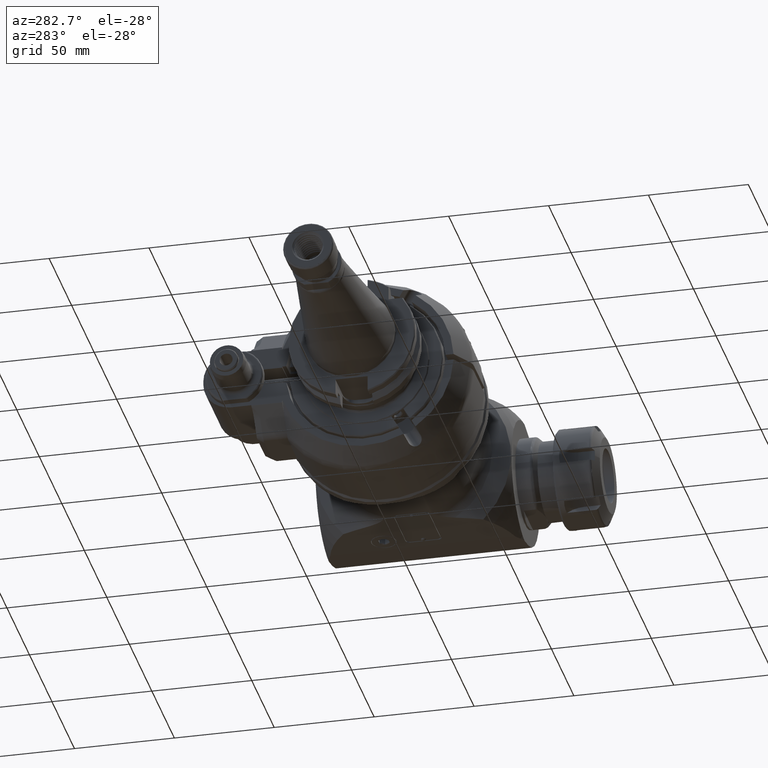
[diagram: clean part render]
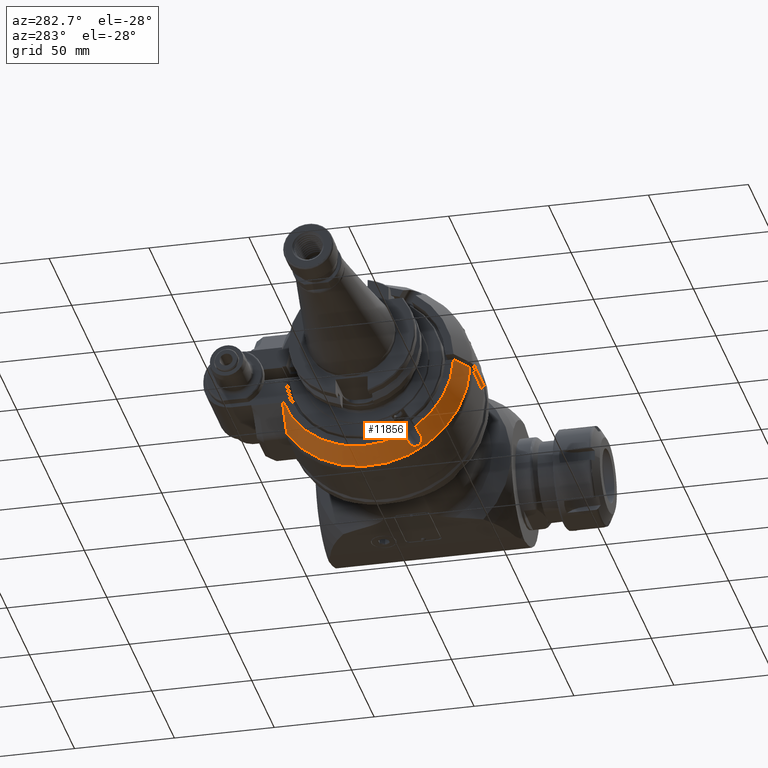
[diagram: same view with one face highlighted and labeled with its STEP entity id]
A machine part, auxiliary view. The second image highlights one B-rep face of the part: STEP entity #11856.
In plain terms, the highlighted conical surface has half-angle 30 deg.
Its self-contained STEP definition (entity closure, byte-faithful):
#129=CONICAL_SURFACE('',#12734,46.96410161514,0.523598775598299);
#296=(
BOUNDED_CURVE()
B_SPLINE_CURVE(2,(#22958,#22959,#22960),.UNSPECIFIED.,.F.,.F.)
B_SPLINE_CURVE_WITH_KNOTS((3,3),(-2.43290769105801,-0.320305328668483),
 .UNSPECIFIED.)
CURVE()
GEOMETRIC_REPRESENTATION_ITEM()
RATIONAL_B_SPLINE_CURVE((1.03252076511009,1.03062027413364,1.00749895945509))
REPRESENTATION_ITEM('')
);
#542=B_SPLINE_CURVE_WITH_KNOTS('',3,(#23079,#23080,#23081,#23082,#23083,
#23084,#23085,#23086,#23087,#23088),.UNSPECIFIED.,.F.,.F.,(4,3,3,4),(0.,
0.3333333333333,0.6666666666667,1.),.UNSPECIFIED.);
#545=B_SPLINE_CURVE_WITH_KNOTS('',3,(#23141,#23142,#23143,#23144,#23145,
#23146,#23147,#23148,#23149,#23150,#23151,#23152,#23153,#23154,#23155,#23156,
#23157,#23158),.UNSPECIFIED.,.F.,.F.,(4,2,2,2,2,2,2,2,4),(1.11206982951625,
1.24885677734264,1.4029266724495,1.5444028479349,1.68587902342029,1.82735519890569,
1.96883137439109,2.12290126949794,2.25968821732541),.UNSPECIFIED.);
#547=B_SPLINE_CURVE_WITH_KNOTS('',3,(#23180,#23181,#23182,#23183,#23184,
#23185,#23186,#23187,#23188,#23189),.UNSPECIFIED.,.F.,.F.,(4,3,3,4),(0.,
0.3333333333333,0.6666666666667,1.),.UNSPECIFIED.);
#548=B_SPLINE_CURVE_WITH_KNOTS('',3,(#23195,#23196,#23197,#23198,#23199,
#23200,#23201,#23202,#23203,#23204),.UNSPECIFIED.,.F.,.F.,(4,3,3,4),(0.,
0.3333333333333,0.6666666666667,1.),.UNSPECIFIED.);
#2957=FACE_OUTER_BOUND('',#3645,.T.);
#3645=EDGE_LOOP('',(#9256,#9257,#9258,#9259,#9260,#9261,#9262,#9263));
#4277=CIRCLE('',#12735,49.92820323028);
#4278=CIRCLE('',#12736,44.);
#4279=CIRCLE('',#12737,44.);
#5148=VERTEX_POINT('',#22946);
#5149=VERTEX_POINT('',#22957);
#5170=VERTEX_POINT('',#23076);
#5171=VERTEX_POINT('',#23078);
#5184=VERTEX_POINT('',#23139);
#5185=VERTEX_POINT('',#23140);
#5189=VERTEX_POINT('',#23179);
#5190=VERTEX_POINT('',#23193);
#6603=EDGE_CURVE('',#5148,#5149,#296,.T.);
#6630=EDGE_CURVE('',#5171,#5170,#542,.T.);
#6648=EDGE_CURVE('',#5184,#5185,#545,.F.);
#6655=EDGE_CURVE('',#5184,#5189,#547,.T.);
#6657=EDGE_CURVE('',#5171,#5148,#4277,.T.);
#6658=EDGE_CURVE('',#5190,#5170,#4278,.T.);
#6659=EDGE_CURVE('',#5190,#5185,#548,.T.);
#6660=EDGE_CURVE('',#5149,#5189,#4279,.T.);
#9256=ORIENTED_EDGE('',*,*,#6657,.F.);
#9257=ORIENTED_EDGE('',*,*,#6630,.T.);
#9258=ORIENTED_EDGE('',*,*,#6658,.F.);
#9259=ORIENTED_EDGE('',*,*,#6659,.T.);
#9260=ORIENTED_EDGE('',*,*,#6648,.F.);
#9261=ORIENTED_EDGE('',*,*,#6655,.T.);
#9262=ORIENTED_EDGE('',*,*,#6660,.F.);
#9263=ORIENTED_EDGE('',*,*,#6603,.F.);
#11856=ADVANCED_FACE('',(#2957),#129,.T.);
#12734=AXIS2_PLACEMENT_3D('',#23191,#14626,#14627);
#12735=AXIS2_PLACEMENT_3D('',#23192,#14628,#14629);
#12736=AXIS2_PLACEMENT_3D('',#23194,#14630,#14631);
#12737=AXIS2_PLACEMENT_3D('',#23205,#14632,#14633);
#14626=DIRECTION('center_axis',(1.,0.,0.));
#14627=DIRECTION('ref_axis',(0.,-1.,0.));
#14628=DIRECTION('center_axis',(1.,0.,0.));
#14629=DIRECTION('ref_axis',(0.,-0.999548602989596,-0.0300431400080999));
#14630=DIRECTION('center_axis',(-1.,0.,0.));
#14631=DIRECTION('ref_axis',(0.,-0.567304004296905,-0.823508449688707));
#14632=DIRECTION('center_axis',(-1.,0.,0.));
#14633=DIRECTION('ref_axis',(0.,0.948863636363632,-0.315686235979311));
#22946=CARTESIAN_POINT('',(-41.23205080757,41.75,-27.38180011986));
#22957=CARTESIAN_POINT('',(-51.5,41.74999999999,-13.89019438316));
#22958=CARTESIAN_POINT('Ctrl Pts',(-41.2320508075673,41.75,-27.3818001198562));
#22959=CARTESIAN_POINT('Ctrl Pts',(-48.0442956678564,41.75,-20.2102413126131));
#22960=CARTESIAN_POINT('Ctrl Pts',(-51.4999999999632,41.75,-13.8901943831554));
#23076=CARTESIAN_POINT('',(-51.5,-43.97442438509,-1.5));
#23078=CARTESIAN_POINT('',(-41.2320595617708,-49.9056607292726,-1.50000007595379));
#23079=CARTESIAN_POINT('Ctrl Pts',(-41.23206831446,-49.90565567486,-1.5));
#23080=CARTESIAN_POINT('Ctrl Pts',(-42.37293045262,-49.24668115316,-1.5));
#23081=CARTESIAN_POINT('Ctrl Pts',(-43.5138242319948,-48.5876765558151,
-1.5));
#23082=CARTESIAN_POINT('Ctrl Pts',(-44.6547122553555,-47.928662020786,-1.5));
#23083=CARTESIAN_POINT('Ctrl Pts',(-45.7956002787165,-47.2696474857567,
-1.5));
#23084=CARTESIAN_POINT('Ctrl Pts',(-46.9364825460635,-46.6106230130433,
-1.5));
#23085=CARTESIAN_POINT('Ctrl Pts',(-48.077363540237,-45.9515842405615,-1.5));
#23086=CARTESIAN_POINT('Ctrl Pts',(-49.2182445344102,-45.2925454680799,
-1.5));
#23087=CARTESIAN_POINT('Ctrl Pts',(-50.35912425541,-44.63349239583,-1.5));
#23088=CARTESIAN_POINT('Ctrl Pts',(-51.5,-43.97442438509,-1.5));
#23139=CARTESIAN_POINT('',(-46.5,-20.34687855495,-42.24182743261));
#23140=CARTESIAN_POINT('',(-46.5,-26.40905638145,-38.74182743261));
#23141=CARTESIAN_POINT('Ctrl Pts',(-46.5000000000002,-26.4090563814455,
-38.7418274326129));
#23142=CARTESIAN_POINT('Ctrl Pts',(-46.0992085079157,-26.5250786273062,
-38.9427838572518));
#23143=CARTESIAN_POINT('Ctrl Pts',(-45.6780271021362,-26.5877455833705,
-39.1945532832522));
#23144=CARTESIAN_POINT('Ctrl Pts',(-44.8336229766582,-26.5711996809164,
-39.7934207779667));
#23145=CARTESIAN_POINT('Ctrl Pts',(-44.416786404141,-26.4721822625297,-40.1489075806805));
#23146=CARTESIAN_POINT('Ctrl Pts',(-43.7689100689263,-26.1383338430384,
-40.8117265913294));
#23147=CARTESIAN_POINT('Ctrl Pts',(-43.4858969585476,-25.8928265156274,
-41.1623315039927));
#23148=CARTESIAN_POINT('Ctrl Pts',(-43.1011571537054,-25.2551263794943,
-41.8163473322267));
#23149=CARTESIAN_POINT('Ctrl Pts',(-43.,-24.8621451840586,-42.1193241407055));
#23150=CARTESIAN_POINT('Ctrl Pts',(-43.,-24.0453321040545,-42.5909113923235));
#23151=CARTESIAN_POINT('Ctrl Pts',(-43.1011571537054,-23.5864558934365,
-42.779754686541));
#23152=CARTESIAN_POINT('Ctrl Pts',(-43.4858969585476,-22.7012115036422,
-43.0050112903121));
#23153=CARTESIAN_POINT('Ctrl Pts',(-43.7689100689263,-22.2748250788787,
-43.0423244163336));
#23154=CARTESIAN_POINT('Ctrl Pts',(-44.416786404141,-21.5338827677997,-43.000036123302));
#23155=CARTESIAN_POINT('Ctrl Pts',(-44.8336229766582,-21.1765134567462,
-42.908044321685));
#23156=CARTESIAN_POINT('Ctrl Pts',(-45.6780271021394,-20.6496060415937,
-42.6229397461805));
#23157=CARTESIAN_POINT('Ctrl Pts',(-46.0992085079223,-20.4629008008123,
-42.4427838572491));
#23158=CARTESIAN_POINT('Ctrl Pts',(-46.5000000000096,-20.3468785549518,
-42.2418274326083));
#23179=CARTESIAN_POINT('',(-51.5,-18.89919836257,-39.7343717863));
#23180=CARTESIAN_POINT('Ctrl Pts',(-46.5000000000021,-20.3468785549516,
-42.2418274326133));
#23181=CARTESIAN_POINT('Ctrl Pts',(-47.0555636796788,-20.1860524218991,
-41.9632683989681));
#23182=CARTESIAN_POINT('Ctrl Pts',(-47.6111251834313,-20.0252176577258,
-41.6846944543344));
#23183=CARTESIAN_POINT('Ctrl Pts',(-48.1666839961781,-19.864373839952,-41.4061048113106));
#23184=CARTESIAN_POINT('Ctrl Pts',(-48.7222428089251,-19.7035300221781,
-41.1275151682867));
#23185=CARTESIAN_POINT('Ctrl Pts',(-49.2777989309903,-19.5426771511998,
-40.8489098273047));
#23186=CARTESIAN_POINT('Ctrl Pts',(-49.8333517949414,-19.381814745264,-40.5702879469552));
#23187=CARTESIAN_POINT('Ctrl Pts',(-50.3889046588924,-19.2209523393283,
-40.2916660666057));
#23188=CARTESIAN_POINT('Ctrl Pts',(-50.9444542651007,-19.0600803989606,
-40.0130276473512));
#23189=CARTESIAN_POINT('Ctrl Pts',(-51.5000000000014,-18.8991983625711,
-39.7343717863022));
#23191=CARTESIAN_POINT('Origin',(-46.36602540378,0.,0.));
#23192=CARTESIAN_POINT('Origin',(-41.23205080757,0.,0.));
#23193=CARTESIAN_POINT('',(-51.5,-24.96137618907,-36.2343717863));
#23194=CARTESIAN_POINT('Origin',(-51.5,0.,0.));
#23195=CARTESIAN_POINT('Ctrl Pts',(-51.4999999999995,-24.9613761890695,
-36.2343717862992));
#23196=CARTESIAN_POINT('Ctrl Pts',(-50.9444542651011,-25.1222582254511,
-36.5130276473516));
#23197=CARTESIAN_POINT('Ctrl Pts',(-50.3889046588926,-25.2831302048165,
-36.7916660440905));
#23198=CARTESIAN_POINT('Ctrl Pts',(-49.8333517949413,-25.4439926282826,
-37.070287914319));
#23199=CARTESIAN_POINT('Ctrl Pts',(-49.2777989309897,-25.6048550517487,
-37.3489097845476));
#23200=CARTESIAN_POINT('Ctrl Pts',(-48.7222428089239,-25.7657079191777,
-37.6275151275794));
#23201=CARTESIAN_POINT('Ctrl Pts',(-48.166683996177,-25.9265517183818,-37.9061047813243));
#23202=CARTESIAN_POINT('Ctrl Pts',(-47.6111251834304,-26.0873955175858,
-38.1846944350692));
#23203=CARTESIAN_POINT('Ctrl Pts',(-47.0555636796788,-26.2482302483888,
-38.4632683989682));
#23204=CARTESIAN_POINT('Ctrl Pts',(-46.5,-26.40905638145,-38.74182743261));
#23205=CARTESIAN_POINT('Origin',(-51.5,0.,0.));